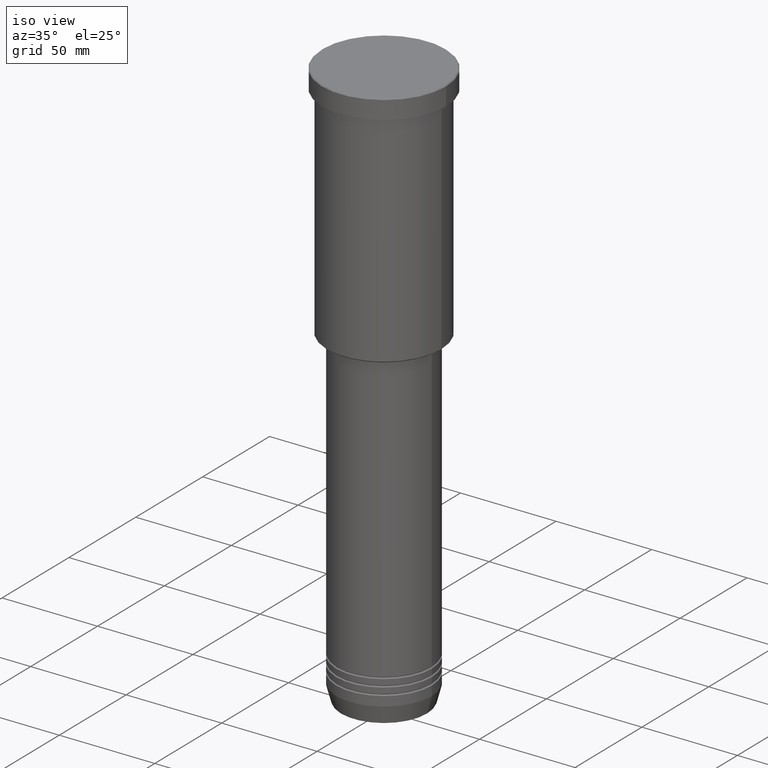
[diagram: clean part render]
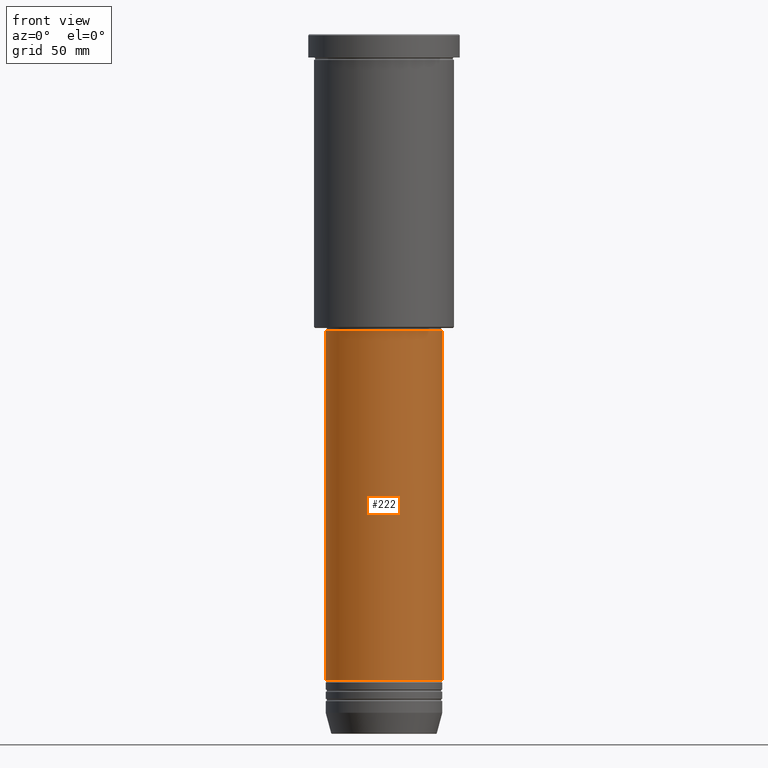
[diagram: tour spotlight — one face highlighted and labeled with its STEP entity id]
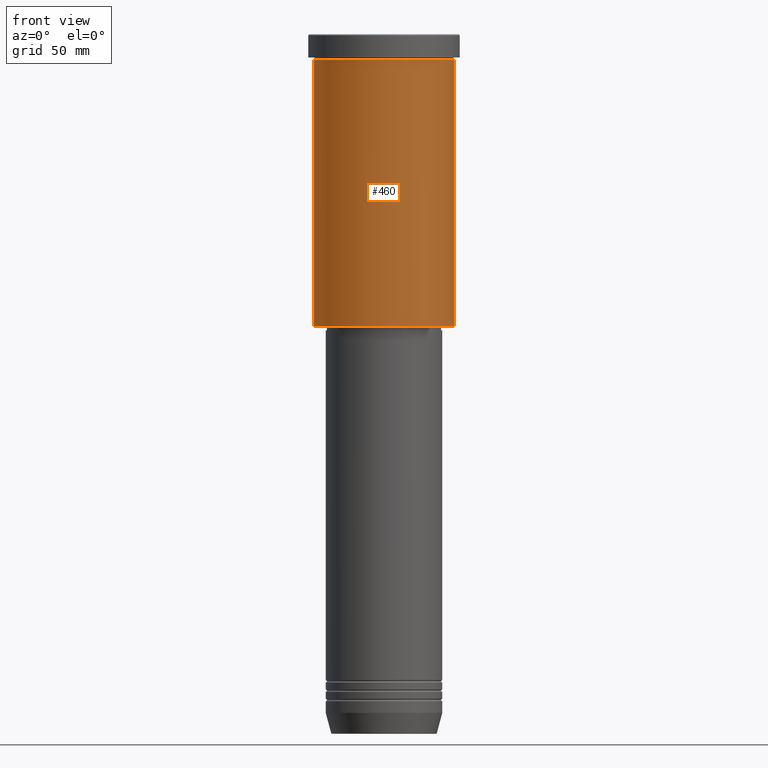
[diagram: tour spotlight — one face highlighted and labeled with its STEP entity id]
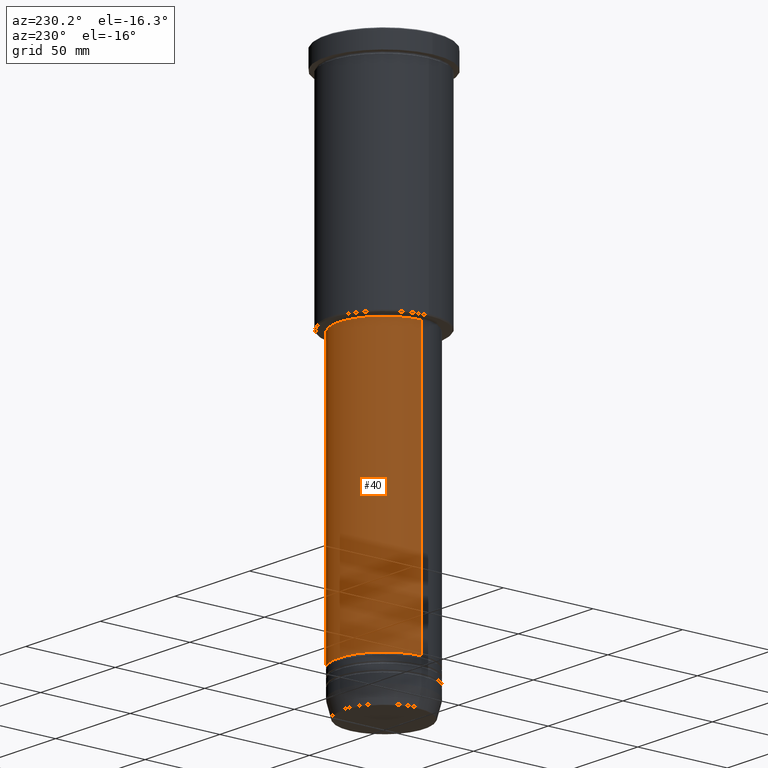
[diagram: tour spotlight — one face highlighted and labeled with its STEP entity id]
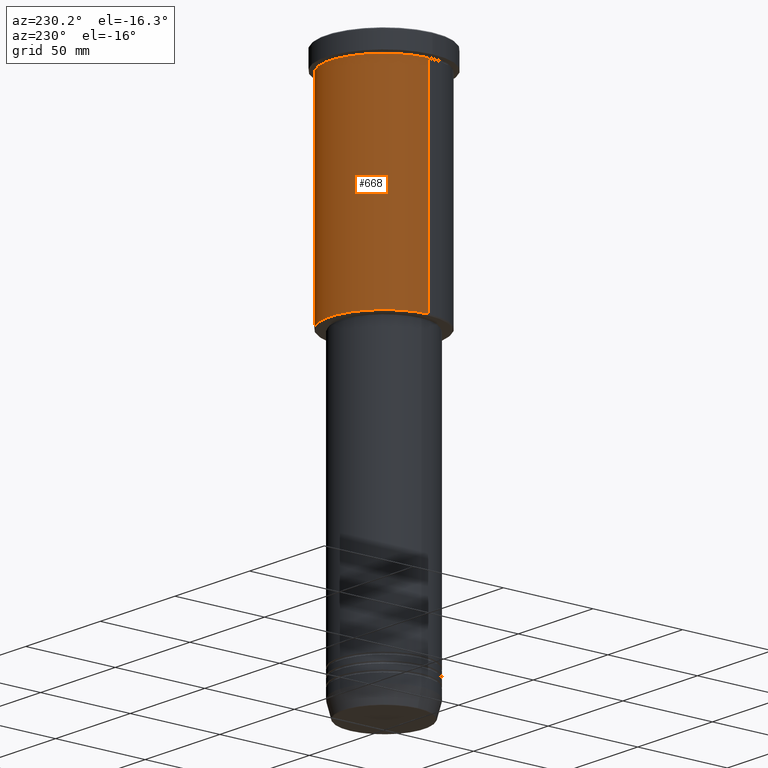
[diagram: tour spotlight — one face highlighted and labeled with its STEP entity id]
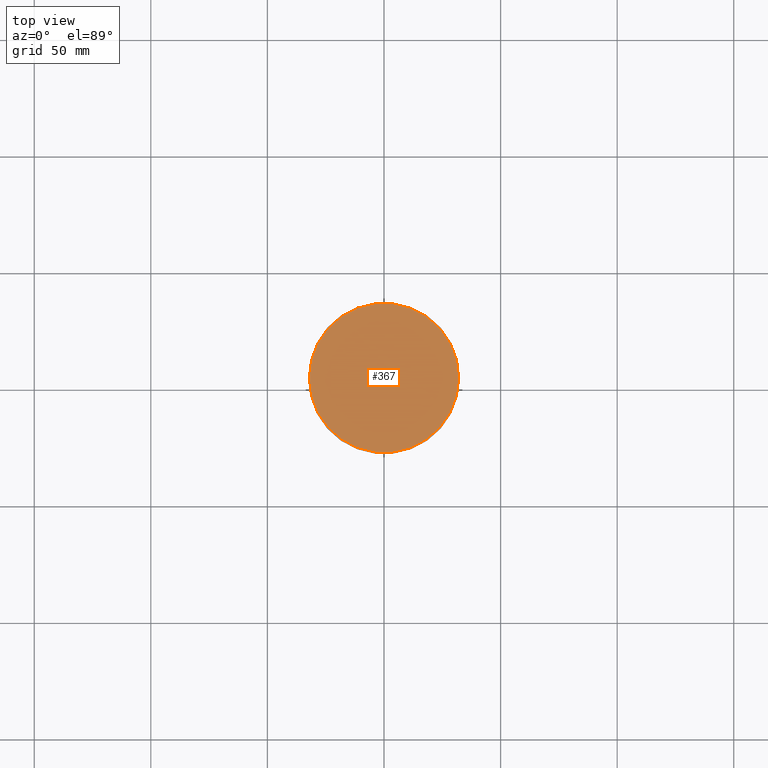
[diagram: tour spotlight — one face highlighted and labeled with its STEP entity id]
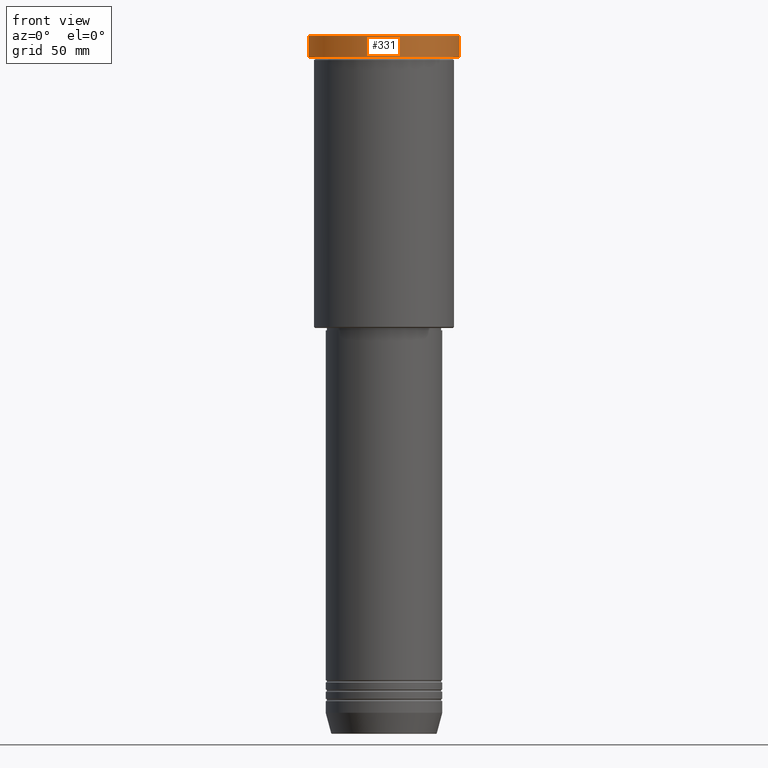
[diagram: tour spotlight — one face highlighted and labeled with its STEP entity id]
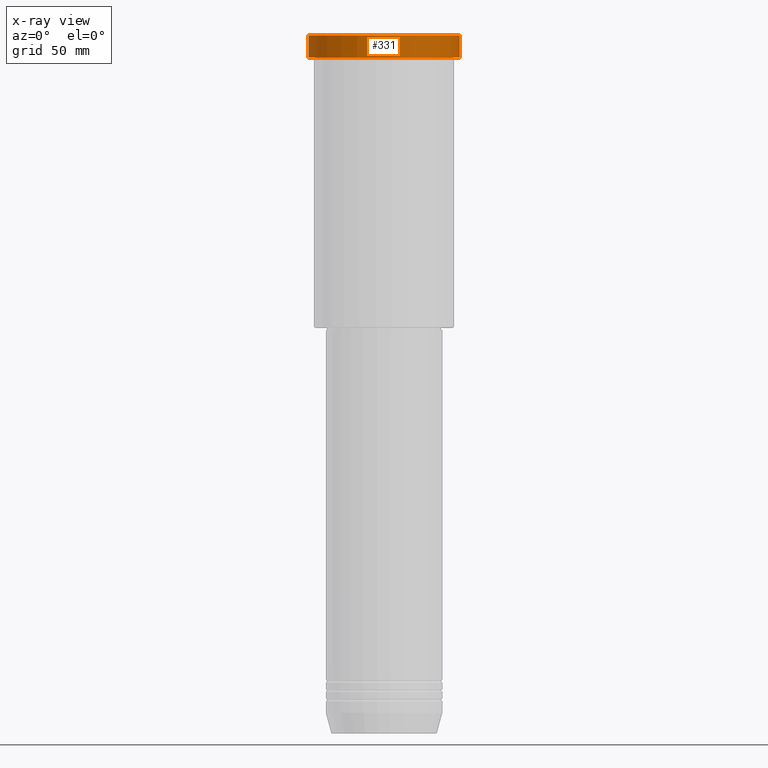
[diagram: x-ray of the same camera — body ghosted, this tour face saturated]
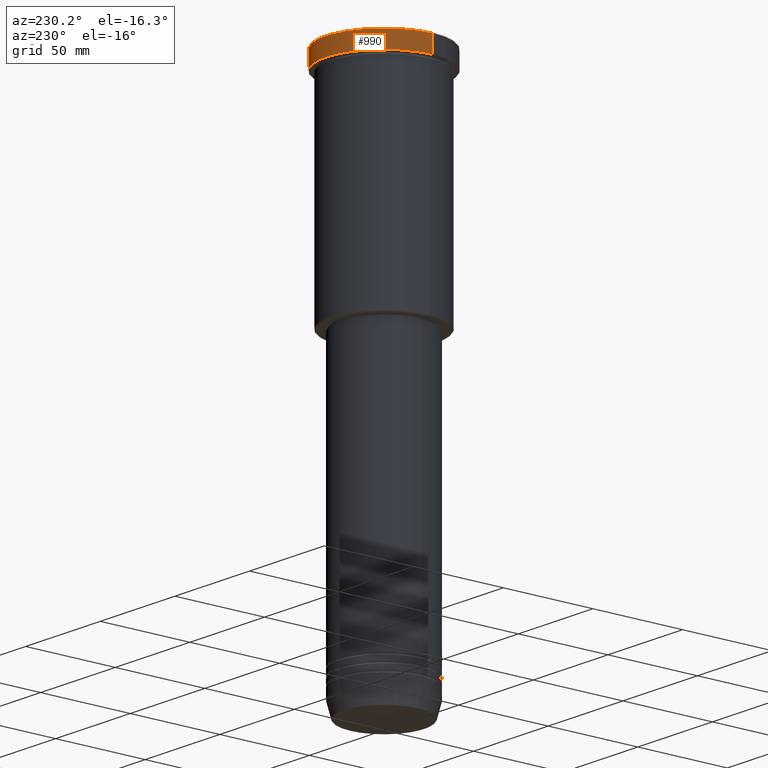
[diagram: tour spotlight — one face highlighted and labeled with its STEP entity id]
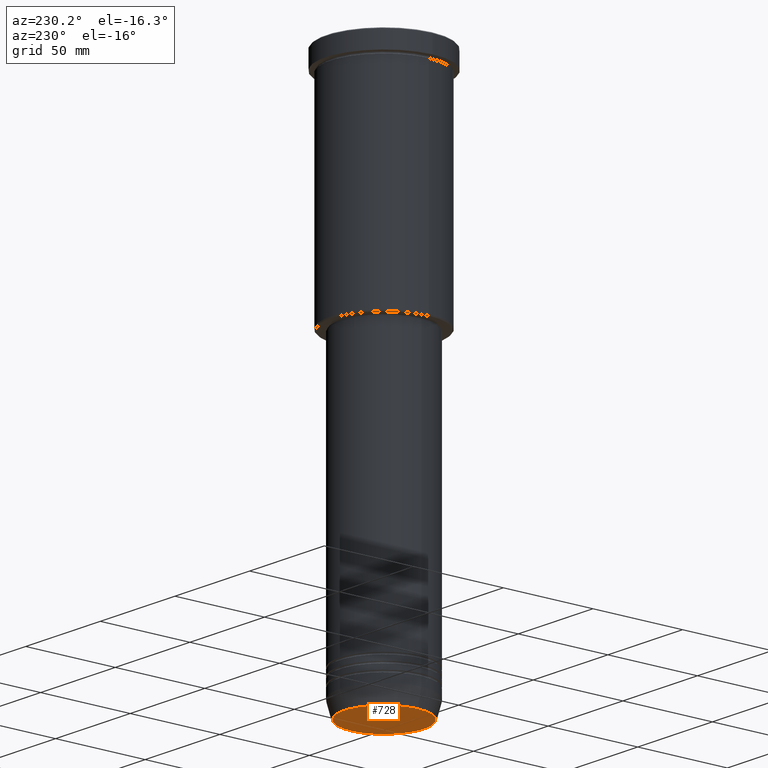
[diagram: tour spotlight — one face highlighted and labeled with its STEP entity id]
A machine part: a face-by-face anatomy tour. The part has 43 B-rep faces; the first image is the clean iso view, then the 8 largest visible faces are spotlighted one at a time (largest first), each with its STEP entity span.

Face 1 — front view, entity #222. In plain terms, the highlighted cylindrical surface (partial cylindrical patch) has radius 25 mm, axis along (-0, -0, 1).
Definition (entity closure, byte-faithful):
#13 = AXIS2_PLACEMENT_3D ( 'NONE', #919, #105, #98 ) ;
#30 = AXIS2_PLACEMENT_3D ( 'NONE', #289, #57, #394 ) ;
#57 = DIRECTION ( 'NONE',  ( -0.000000000000000000, -0.000000000000000000, 1.000000000000000000 ) ) ;
#66 = CARTESIAN_POINT ( 'NONE',  ( -25.00000000000000355, 3.061616997868383437E-15, 0.000000000000000000 ) ) ;
#98 = DIRECTION ( 'NONE',  ( 1.000000000000000000, 0.000000000000000000, 0.000000000000000000 ) ) ;
#105 = DIRECTION ( 'NONE',  ( -0.000000000000000000, -0.000000000000000000, 1.000000000000000000 ) ) ;
#157 = DIRECTION ( 'NONE',  ( 1.000000000000000000, 0.000000000000000000, 0.000000000000000000 ) ) ;
#213 = VERTEX_POINT ( 'NONE', #339 ) ;
#222 = ADVANCED_FACE ( 'NONE', ( #229 ), #945, .T. ) ;
#229 = FACE_OUTER_BOUND ( 'NONE', #692, .T. ) ;
#268 = CARTESIAN_POINT ( 'NONE',  ( 25.00000000000000711, 0.000000000000000000, -127.0000000000000000 ) ) ;
#289 = CARTESIAN_POINT ( 'NONE',  ( 0.000000000000000000, 0.000000000000000000, -276.9999999999999432 ) ) ;
#318 = CARTESIAN_POINT ( 'NONE',  ( 0.000000000000000000, 0.000000000000000000, 0.000000000000000000 ) ) ;
#339 = CARTESIAN_POINT ( 'NONE',  ( -25.00000000000001066, 3.061616997868384226E-15, -127.0000000000000000 ) ) ;
#365 = ORIENTED_EDGE ( 'NONE', *, *, #462, .T. ) ;
#374 = VERTEX_POINT ( 'NONE', #515 ) ;
#394 = DIRECTION ( 'NONE',  ( 1.000000000000000000, 0.000000000000000000, 0.000000000000000000 ) ) ;
#454 = EDGE_CURVE ( 'NONE', #670, #374, #812, .T. ) ;
#462 = EDGE_CURVE ( 'NONE', #374, #657, #755, .T. ) ;
#515 = CARTESIAN_POINT ( 'NONE',  ( 25.00000000000000000, 0.000000000000000000, -276.9999999999999432 ) ) ;
#525 = ORIENTED_EDGE ( 'NONE', *, *, #454, .T. ) ;
#530 = CIRCLE ( 'NONE', #13, 25.00000000000000711 ) ;
#565 = EDGE_CURVE ( 'NONE', #670, #213, #881, .T. ) ;
#626 = DIRECTION ( 'NONE',  ( -0.000000000000000000, -0.000000000000000000, 1.000000000000000000 ) ) ;
#657 = VERTEX_POINT ( 'NONE', #268 ) ;
#666 = CARTESIAN_POINT ( 'NONE',  ( 25.00000000000000355, 0.000000000000000000, 0.000000000000000000 ) ) ;
#670 = VERTEX_POINT ( 'NONE', #1183 ) ;
#692 = EDGE_LOOP ( 'NONE', ( #1079, #525, #365, #1026 ) ) ;
#755 = LINE ( 'NONE', #666, #1133 ) ;
#812 = CIRCLE ( 'NONE', #30, 25.00000000000000000 ) ;
#881 = LINE ( 'NONE', #66, #1032 ) ;
#919 = CARTESIAN_POINT ( 'NONE',  ( 0.000000000000000000, 0.000000000000000000, -127.0000000000000000 ) ) ;
#945 = CYLINDRICAL_SURFACE ( 'NONE', #1137, 25.00000000000000355 ) ;
#988 = DIRECTION ( 'NONE',  ( -0.000000000000000000, -0.000000000000000000, 1.000000000000000000 ) ) ;
#1026 = ORIENTED_EDGE ( 'NONE', *, *, #1167, .F. ) ;
#1032 = VECTOR ( 'NONE', #626, 1000.000000000000000 ) ;
#1049 = DIRECTION ( 'NONE',  ( -0.000000000000000000, -0.000000000000000000, 1.000000000000000000 ) ) ;
#1079 = ORIENTED_EDGE ( 'NONE', *, *, #565, .F. ) ;
#1133 = VECTOR ( 'NONE', #1049, 1000.000000000000000 ) ;
#1137 = AXIS2_PLACEMENT_3D ( 'NONE', #318, #988, #157 ) ;
#1167 = EDGE_CURVE ( 'NONE', #213, #657, #530, .T. ) ;
#1183 = CARTESIAN_POINT ( 'NONE',  ( -25.00000000000000000, 3.061616997868383437E-15, -276.9999999999999432 ) ) ;

Face 2 — front view, entity #460. In plain terms, the highlighted cylindrical surface (partial cylindrical patch) has radius 30 mm, axis along (-0, -0, 1).
Definition (entity closure, byte-faithful):
#18 = ORIENTED_EDGE ( 'NONE', *, *, #210, .T. ) ;
#49 = DIRECTION ( 'NONE',  ( 1.000000000000000000, 0.000000000000000000, 0.000000000000000000 ) ) ;
#64 = EDGE_CURVE ( 'NONE', #379, #703, #607, .T. ) ;
#85 = CIRCLE ( 'NONE', #696, 30.00000000000000000 ) ;
#128 = VECTOR ( 'NONE', #790, 1000.000000000000000 ) ;
#138 = AXIS2_PLACEMENT_3D ( 'NONE', #929, #787, #1143 ) ;
#145 = AXIS2_PLACEMENT_3D ( 'NONE', #333, #1077, #264 ) ;
#155 = ORIENTED_EDGE ( 'NONE', *, *, #64, .T. ) ;
#210 = EDGE_CURVE ( 'NONE', #703, #225, #798, .T. ) ;
#225 = VERTEX_POINT ( 'NONE', #540 ) ;
#264 = DIRECTION ( 'NONE',  ( -1.000000000000000000, 0.000000000000000000, 0.000000000000000000 ) ) ;
#283 = VERTEX_POINT ( 'NONE', #992 ) ;
#304 = ORIENTED_EDGE ( 'NONE', *, *, #1081, .F. ) ;
#333 = CARTESIAN_POINT ( 'NONE',  ( 0.000000000000000000, 0.000000000000000000, -125.5000000000000000 ) ) ;
#379 = VERTEX_POINT ( 'NONE', #491 ) ;
#460 = ADVANCED_FACE ( 'NONE', ( #488 ), #656, .T. ) ;
#488 = FACE_OUTER_BOUND ( 'NONE', #793, .T. ) ;
#491 = CARTESIAN_POINT ( 'NONE',  ( -30.00000000000000000, 3.673940397442059178E-15, -125.5000000000000000 ) ) ;
#503 = CARTESIAN_POINT ( 'NONE',  ( 0.000000000000000000, 0.000000000000000000, -10.99999999999999289 ) ) ;
#540 = CARTESIAN_POINT ( 'NONE',  ( 30.00000000000000000, 0.000000000000000000, -10.99999999999999289 ) ) ;
#590 = CARTESIAN_POINT ( 'NONE',  ( 30.00000000000000000, 0.000000000000000000, 0.000000000000000000 ) ) ;
#606 = VECTOR ( 'NONE', #1058, 1000.000000000000000 ) ;
#607 = CIRCLE ( 'NONE', #145, 30.00000000000000000 ) ;
#656 = CYLINDRICAL_SURFACE ( 'NONE', #138, 30.00000000000000000 ) ;
#696 = AXIS2_PLACEMENT_3D ( 'NONE', #503, #950, #49 ) ;
#703 = VERTEX_POINT ( 'NONE', #843 ) ;
#787 = DIRECTION ( 'NONE',  ( -0.000000000000000000, -0.000000000000000000, 1.000000000000000000 ) ) ;
#790 = DIRECTION ( 'NONE',  ( -0.000000000000000000, -0.000000000000000000, 1.000000000000000000 ) ) ;
#793 = EDGE_LOOP ( 'NONE', ( #304, #155, #18, #856 ) ) ;
#798 = LINE ( 'NONE', #590, #128 ) ;
#843 = CARTESIAN_POINT ( 'NONE',  ( 30.00000000000000000, 0.000000000000000000, -125.5000000000000000 ) ) ;
#856 = ORIENTED_EDGE ( 'NONE', *, *, #882, .F. ) ;
#882 = EDGE_CURVE ( 'NONE', #283, #225, #85, .T. ) ;
#893 = CARTESIAN_POINT ( 'NONE',  ( -30.00000000000000000, 3.673940397442059178E-15, 0.000000000000000000 ) ) ;
#929 = CARTESIAN_POINT ( 'NONE',  ( 0.000000000000000000, 0.000000000000000000, 0.000000000000000000 ) ) ;
#950 = DIRECTION ( 'NONE',  ( -0.000000000000000000, -0.000000000000000000, 1.000000000000000000 ) ) ;
#992 = CARTESIAN_POINT ( 'NONE',  ( -30.00000000000000000, 3.673940397442059178E-15, -10.99999999999999289 ) ) ;
#1058 = DIRECTION ( 'NONE',  ( -0.000000000000000000, -0.000000000000000000, 1.000000000000000000 ) ) ;
#1064 = LINE ( 'NONE', #893, #606 ) ;
#1077 = DIRECTION ( 'NONE',  ( -0.000000000000000000, -0.000000000000000000, 1.000000000000000000 ) ) ;
#1081 = EDGE_CURVE ( 'NONE', #379, #283, #1064, .T. ) ;
#1143 = DIRECTION ( 'NONE',  ( 1.000000000000000000, 0.000000000000000000, 0.000000000000000000 ) ) ;

Face 3 — auxiliary view, entity #40. In plain terms, the highlighted cylindrical surface (partial cylindrical patch) has radius 25 mm, axis along (-0, -0, 1).
Definition (entity closure, byte-faithful):
#5 = ORIENTED_EDGE ( 'NONE', *, *, #1030, .T. ) ;
#25 = ORIENTED_EDGE ( 'NONE', *, *, #462, .F. ) ;
#40 = ADVANCED_FACE ( 'NONE', ( #562 ), #45, .T. ) ;
#45 = CYLINDRICAL_SURFACE ( 'NONE', #53, 25.00000000000000355 ) ;
#53 = AXIS2_PLACEMENT_3D ( 'NONE', #327, #1157, #524 ) ;
#66 = CARTESIAN_POINT ( 'NONE',  ( -25.00000000000000355, 3.061616997868383437E-15, 0.000000000000000000 ) ) ;
#202 = CIRCLE ( 'NONE', #815, 25.00000000000000000 ) ;
#213 = VERTEX_POINT ( 'NONE', #339 ) ;
#268 = CARTESIAN_POINT ( 'NONE',  ( 25.00000000000000711, 0.000000000000000000, -127.0000000000000000 ) ) ;
#310 = EDGE_CURVE ( 'NONE', #657, #213, #777, .T. ) ;
#327 = CARTESIAN_POINT ( 'NONE',  ( 0.000000000000000000, 0.000000000000000000, 0.000000000000000000 ) ) ;
#339 = CARTESIAN_POINT ( 'NONE',  ( -25.00000000000001066, 3.061616997868384226E-15, -127.0000000000000000 ) ) ;
#353 = CARTESIAN_POINT ( 'NONE',  ( 0.000000000000000000, 0.000000000000000000, -276.9999999999999432 ) ) ;
#374 = VERTEX_POINT ( 'NONE', #515 ) ;
#456 = AXIS2_PLACEMENT_3D ( 'NONE', #983, #987, #470 ) ;
#462 = EDGE_CURVE ( 'NONE', #374, #657, #755, .T. ) ;
#470 = DIRECTION ( 'NONE',  ( 1.000000000000000000, 0.000000000000000000, 0.000000000000000000 ) ) ;
#515 = CARTESIAN_POINT ( 'NONE',  ( 25.00000000000000000, 0.000000000000000000, -276.9999999999999432 ) ) ;
#524 = DIRECTION ( 'NONE',  ( 1.000000000000000000, 0.000000000000000000, 0.000000000000000000 ) ) ;
#562 = FACE_OUTER_BOUND ( 'NONE', #685, .T. ) ;
#565 = EDGE_CURVE ( 'NONE', #670, #213, #881, .T. ) ;
#626 = DIRECTION ( 'NONE',  ( -0.000000000000000000, -0.000000000000000000, 1.000000000000000000 ) ) ;
#657 = VERTEX_POINT ( 'NONE', #268 ) ;
#666 = CARTESIAN_POINT ( 'NONE',  ( 25.00000000000000355, 0.000000000000000000, 0.000000000000000000 ) ) ;
#670 = VERTEX_POINT ( 'NONE', #1183 ) ;
#685 = EDGE_LOOP ( 'NONE', ( #5, #1114, #1166, #25 ) ) ;
#712 = DIRECTION ( 'NONE',  ( -0.000000000000000000, -0.000000000000000000, 1.000000000000000000 ) ) ;
#755 = LINE ( 'NONE', #666, #1133 ) ;
#777 = CIRCLE ( 'NONE', #456, 25.00000000000000711 ) ;
#797 = DIRECTION ( 'NONE',  ( 1.000000000000000000, 0.000000000000000000, 0.000000000000000000 ) ) ;
#815 = AXIS2_PLACEMENT_3D ( 'NONE', #353, #712, #797 ) ;
#881 = LINE ( 'NONE', #66, #1032 ) ;
#983 = CARTESIAN_POINT ( 'NONE',  ( 0.000000000000000000, 0.000000000000000000, -127.0000000000000000 ) ) ;
#987 = DIRECTION ( 'NONE',  ( -0.000000000000000000, -0.000000000000000000, 1.000000000000000000 ) ) ;
#1030 = EDGE_CURVE ( 'NONE', #374, #670, #202, .T. ) ;
#1032 = VECTOR ( 'NONE', #626, 1000.000000000000000 ) ;
#1049 = DIRECTION ( 'NONE',  ( -0.000000000000000000, -0.000000000000000000, 1.000000000000000000 ) ) ;
#1114 = ORIENTED_EDGE ( 'NONE', *, *, #565, .T. ) ;
#1133 = VECTOR ( 'NONE', #1049, 1000.000000000000000 ) ;
#1157 = DIRECTION ( 'NONE',  ( -0.000000000000000000, -0.000000000000000000, 1.000000000000000000 ) ) ;
#1166 = ORIENTED_EDGE ( 'NONE', *, *, #310, .F. ) ;
#1183 = CARTESIAN_POINT ( 'NONE',  ( -25.00000000000000000, 3.061616997868383437E-15, -276.9999999999999432 ) ) ;

Face 4 — auxiliary view, entity #668. In plain terms, the highlighted cylindrical surface (partial cylindrical patch) has radius 30 mm, axis along (-0, -0, 1).
Definition (entity closure, byte-faithful):
#58 = ORIENTED_EDGE ( 'NONE', *, *, #1022, .F. ) ;
#60 = CYLINDRICAL_SURFACE ( 'NONE', #994, 30.00000000000000000 ) ;
#128 = VECTOR ( 'NONE', #790, 1000.000000000000000 ) ;
#177 = DIRECTION ( 'NONE',  ( -1.000000000000000000, 0.000000000000000000, 0.000000000000000000 ) ) ;
#179 = ORIENTED_EDGE ( 'NONE', *, *, #1081, .T. ) ;
#201 = CIRCLE ( 'NONE', #832, 30.00000000000000000 ) ;
#210 = EDGE_CURVE ( 'NONE', #703, #225, #798, .T. ) ;
#225 = VERTEX_POINT ( 'NONE', #540 ) ;
#238 = CIRCLE ( 'NONE', #1174, 30.00000000000000000 ) ;
#283 = VERTEX_POINT ( 'NONE', #992 ) ;
#330 = CARTESIAN_POINT ( 'NONE',  ( 0.000000000000000000, 0.000000000000000000, -10.99999999999999289 ) ) ;
#348 = DIRECTION ( 'NONE',  ( -0.000000000000000000, -0.000000000000000000, 1.000000000000000000 ) ) ;
#379 = VERTEX_POINT ( 'NONE', #491 ) ;
#491 = CARTESIAN_POINT ( 'NONE',  ( -30.00000000000000000, 3.673940397442059178E-15, -125.5000000000000000 ) ) ;
#540 = CARTESIAN_POINT ( 'NONE',  ( 30.00000000000000000, 0.000000000000000000, -10.99999999999999289 ) ) ;
#566 = CARTESIAN_POINT ( 'NONE',  ( 0.000000000000000000, 0.000000000000000000, -125.5000000000000000 ) ) ;
#590 = CARTESIAN_POINT ( 'NONE',  ( 30.00000000000000000, 0.000000000000000000, 0.000000000000000000 ) ) ;
#606 = VECTOR ( 'NONE', #1058, 1000.000000000000000 ) ;
#612 = CARTESIAN_POINT ( 'NONE',  ( 0.000000000000000000, 0.000000000000000000, 0.000000000000000000 ) ) ;
#644 = EDGE_LOOP ( 'NONE', ( #1130, #179, #58, #730 ) ) ;
#668 = ADVANCED_FACE ( 'NONE', ( #964 ), #60, .T. ) ;
#703 = VERTEX_POINT ( 'NONE', #843 ) ;
#717 = DIRECTION ( 'NONE',  ( -0.000000000000000000, -0.000000000000000000, 1.000000000000000000 ) ) ;
#730 = ORIENTED_EDGE ( 'NONE', *, *, #210, .F. ) ;
#769 = EDGE_CURVE ( 'NONE', #703, #379, #201, .T. ) ;
#790 = DIRECTION ( 'NONE',  ( -0.000000000000000000, -0.000000000000000000, 1.000000000000000000 ) ) ;
#798 = LINE ( 'NONE', #590, #128 ) ;
#820 = DIRECTION ( 'NONE',  ( 1.000000000000000000, 0.000000000000000000, 0.000000000000000000 ) ) ;
#832 = AXIS2_PLACEMENT_3D ( 'NONE', #566, #989, #177 ) ;
#843 = CARTESIAN_POINT ( 'NONE',  ( 30.00000000000000000, 0.000000000000000000, -125.5000000000000000 ) ) ;
#893 = CARTESIAN_POINT ( 'NONE',  ( -30.00000000000000000, 3.673940397442059178E-15, 0.000000000000000000 ) ) ;
#964 = FACE_OUTER_BOUND ( 'NONE', #644, .T. ) ;
#989 = DIRECTION ( 'NONE',  ( -0.000000000000000000, -0.000000000000000000, 1.000000000000000000 ) ) ;
#992 = CARTESIAN_POINT ( 'NONE',  ( -30.00000000000000000, 3.673940397442059178E-15, -10.99999999999999289 ) ) ;
#994 = AXIS2_PLACEMENT_3D ( 'NONE', #612, #348, #820 ) ;
#1022 = EDGE_CURVE ( 'NONE', #225, #283, #238, .T. ) ;
#1046 = DIRECTION ( 'NONE',  ( 1.000000000000000000, 0.000000000000000000, 0.000000000000000000 ) ) ;
#1058 = DIRECTION ( 'NONE',  ( -0.000000000000000000, -0.000000000000000000, 1.000000000000000000 ) ) ;
#1064 = LINE ( 'NONE', #893, #606 ) ;
#1081 = EDGE_CURVE ( 'NONE', #379, #283, #1064, .T. ) ;
#1130 = ORIENTED_EDGE ( 'NONE', *, *, #769, .T. ) ;
#1174 = AXIS2_PLACEMENT_3D ( 'NONE', #330, #717, #1046 ) ;

Face 5 — top view, entity #367. In plain terms, the highlighted planar face has unit normal (0, -0, 1).
Definition (entity closure, byte-faithful):
#27 = CARTESIAN_POINT ( 'NONE',  ( 0.000000000000000000, 0.000000000000000000, 0.000000000000000000 ) ) ;
#31 = AXIS2_PLACEMENT_3D ( 'NONE', #27, #197, #635 ) ;
#62 = DIRECTION ( 'NONE',  ( -0.000000000000000000, -0.000000000000000000, 1.000000000000000000 ) ) ;
#174 = FACE_OUTER_BOUND ( 'NONE', #1025, .T. ) ;
#183 = ORIENTED_EDGE ( 'NONE', *, *, #748, .T. ) ;
#197 = DIRECTION ( 'NONE',  ( -0.000000000000000000, -0.000000000000000000, 1.000000000000000000 ) ) ;
#199 = DIRECTION ( 'NONE',  ( 0.000000000000000000, -0.000000000000000000, 1.000000000000000000 ) ) ;
#234 = CIRCLE ( 'NONE', #31, 32.00000000000002842 ) ;
#334 = VERTEX_POINT ( 'NONE', #647 ) ;
#367 = ADVANCED_FACE ( 'NONE', ( #174 ), #542, .T. ) ;
#424 = DIRECTION ( 'NONE',  ( 1.000000000000000000, 0.000000000000000000, 0.000000000000000000 ) ) ;
#542 = PLANE ( 'NONE',  #884 ) ;
#570 = AXIS2_PLACEMENT_3D ( 'NONE', #789, #62, #1075 ) ;
#635 = DIRECTION ( 'NONE',  ( 1.000000000000000000, 0.000000000000000000, 0.000000000000000000 ) ) ;
#637 = CARTESIAN_POINT ( 'NONE',  ( 0.000000000000000000, 0.000000000000000000, 0.000000000000000000 ) ) ;
#647 = CARTESIAN_POINT ( 'NONE',  ( 32.00000000000002842, 3.949485927250216417E-15, 0.000000000000000000 ) ) ;
#748 = EDGE_CURVE ( 'NONE', #334, #971, #234, .T. ) ;
#789 = CARTESIAN_POINT ( 'NONE',  ( 0.000000000000000000, 0.000000000000000000, 0.000000000000000000 ) ) ;
#853 = ORIENTED_EDGE ( 'NONE', *, *, #1039, .T. ) ;
#868 = CIRCLE ( 'NONE', #570, 32.00000000000002842 ) ;
#884 = AXIS2_PLACEMENT_3D ( 'NONE', #637, #199, #424 ) ;
#971 = VERTEX_POINT ( 'NONE', #1028 ) ;
#1025 = EDGE_LOOP ( 'NONE', ( #853, #183 ) ) ;
#1028 = CARTESIAN_POINT ( 'NONE',  ( -32.00000000000002842, 0.000000000000000000, 0.000000000000000000 ) ) ;
#1039 = EDGE_CURVE ( 'NONE', #971, #334, #868, .T. ) ;
#1075 = DIRECTION ( 'NONE',  ( 1.000000000000000000, 0.000000000000000000, 0.000000000000000000 ) ) ;

Face 6 — front view, entity #331. An x-ray twin of the same camera follows (body ghosted, this face saturated) — the face is partly hidden behind the body. In plain terms, the highlighted cylindrical surface (partial cylindrical patch) has radius 32.5 mm, axis along (-0, -0, 1).
Definition (entity closure, byte-faithful):
#52 = VECTOR ( 'NONE', #876, 1000.000000000000000 ) ;
#56 = DIRECTION ( 'NONE',  ( 0.000000000000000000, 0.000000000000000000, -1.000000000000000000 ) ) ;
#77 = EDGE_LOOP ( 'NONE', ( #697, #883, #220, #1125 ) ) ;
#93 = DIRECTION ( 'NONE',  ( 1.000000000000000000, 0.000000000000000000, 0.000000000000000000 ) ) ;
#164 = VERTEX_POINT ( 'NONE', #501 ) ;
#198 = EDGE_CURVE ( 'NONE', #412, #478, #549, .T. ) ;
#214 = AXIS2_PLACEMENT_3D ( 'NONE', #899, #447, #93 ) ;
#220 = ORIENTED_EDGE ( 'NONE', *, *, #1150, .T. ) ;
#243 = DIRECTION ( 'NONE',  ( 1.000000000000000000, 0.000000000000000000, 0.000000000000000000 ) ) ;
#252 = EDGE_CURVE ( 'NONE', #164, #320, #869, .T. ) ;
#280 = CYLINDRICAL_SURFACE ( 'NONE', #214, 32.50000000000000000 ) ;
#312 = VECTOR ( 'NONE', #1085, 1000.000000000000000 ) ;
#320 = VERTEX_POINT ( 'NONE', #1006 ) ;
#331 = ADVANCED_FACE ( 'NONE', ( #1091 ), #280, .T. ) ;
#356 = EDGE_CURVE ( 'NONE', #164, #478, #723, .T. ) ;
#364 = AXIS2_PLACEMENT_3D ( 'NONE', #1101, #387, #807 ) ;
#387 = DIRECTION ( 'NONE',  ( -0.000000000000000000, -0.000000000000000000, 1.000000000000000000 ) ) ;
#412 = VERTEX_POINT ( 'NONE', #1024 ) ;
#447 = DIRECTION ( 'NONE',  ( -0.000000000000000000, -0.000000000000000000, 1.000000000000000000 ) ) ;
#455 = LINE ( 'NONE', #519, #52 ) ;
#477 = CARTESIAN_POINT ( 'NONE',  ( -32.50000000000000000, 3.980102097228898626E-15, -0.5000000000000004441 ) ) ;
#478 = VERTEX_POINT ( 'NONE', #477 ) ;
#501 = CARTESIAN_POINT ( 'NONE',  ( -32.50000000000000000, 3.980102097228898626E-15, -9.999999999999992895 ) ) ;
#519 = CARTESIAN_POINT ( 'NONE',  ( 32.50000000000000000, 0.000000000000000000, 0.000000000000000000 ) ) ;
#549 = CIRCLE ( 'NONE', #1153, 32.50000000000000000 ) ;
#697 = ORIENTED_EDGE ( 'NONE', *, *, #356, .F. ) ;
#723 = LINE ( 'NONE', #729, #312 ) ;
#729 = CARTESIAN_POINT ( 'NONE',  ( -32.50000000000000000, 3.980102097228898626E-15, 0.000000000000000000 ) ) ;
#807 = DIRECTION ( 'NONE',  ( 1.000000000000000000, 0.000000000000000000, 0.000000000000000000 ) ) ;
#869 = CIRCLE ( 'NONE', #364, 32.50000000000000000 ) ;
#876 = DIRECTION ( 'NONE',  ( -0.000000000000000000, -0.000000000000000000, 1.000000000000000000 ) ) ;
#883 = ORIENTED_EDGE ( 'NONE', *, *, #252, .T. ) ;
#899 = CARTESIAN_POINT ( 'NONE',  ( 0.000000000000000000, 0.000000000000000000, 0.000000000000000000 ) ) ;
#1006 = CARTESIAN_POINT ( 'NONE',  ( 32.50000000000000000, 0.000000000000000000, -9.999999999999992895 ) ) ;
#1024 = CARTESIAN_POINT ( 'NONE',  ( 32.50000000000000000, 0.000000000000000000, -0.5000000000000004441 ) ) ;
#1042 = CARTESIAN_POINT ( 'NONE',  ( 0.000000000000000000, 0.000000000000000000, -0.5000000000000004441 ) ) ;
#1085 = DIRECTION ( 'NONE',  ( -0.000000000000000000, -0.000000000000000000, 1.000000000000000000 ) ) ;
#1091 = FACE_OUTER_BOUND ( 'NONE', #77, .T. ) ;
#1101 = CARTESIAN_POINT ( 'NONE',  ( 0.000000000000000000, 0.000000000000000000, -9.999999999999992895 ) ) ;
#1125 = ORIENTED_EDGE ( 'NONE', *, *, #198, .T. ) ;
#1150 = EDGE_CURVE ( 'NONE', #320, #412, #455, .T. ) ;
#1153 = AXIS2_PLACEMENT_3D ( 'NONE', #1042, #56, #243 ) ;

Face 7 — auxiliary view, entity #990. In plain terms, the highlighted cylindrical surface (partial cylindrical patch) has radius 32.5 mm, axis along (-0, -0, 1).
Definition (entity closure, byte-faithful):
#2 = EDGE_LOOP ( 'NONE', ( #653, #850, #959, #1152 ) ) ;
#52 = VECTOR ( 'NONE', #876, 1000.000000000000000 ) ;
#115 = DIRECTION ( 'NONE',  ( 1.000000000000000000, 0.000000000000000000, 0.000000000000000000 ) ) ;
#161 = AXIS2_PLACEMENT_3D ( 'NONE', #1008, #1115, #115 ) ;
#164 = VERTEX_POINT ( 'NONE', #501 ) ;
#180 = CIRCLE ( 'NONE', #779, 32.50000000000000000 ) ;
#218 = DIRECTION ( 'NONE',  ( 0.000000000000000000, 0.000000000000000000, -1.000000000000000000 ) ) ;
#312 = VECTOR ( 'NONE', #1085, 1000.000000000000000 ) ;
#320 = VERTEX_POINT ( 'NONE', #1006 ) ;
#356 = EDGE_CURVE ( 'NONE', #164, #478, #723, .T. ) ;
#401 = AXIS2_PLACEMENT_3D ( 'NONE', #489, #1122, #847 ) ;
#412 = VERTEX_POINT ( 'NONE', #1024 ) ;
#422 = DIRECTION ( 'NONE',  ( 1.000000000000000000, 0.000000000000000000, 0.000000000000000000 ) ) ;
#455 = LINE ( 'NONE', #519, #52 ) ;
#477 = CARTESIAN_POINT ( 'NONE',  ( -32.50000000000000000, 3.980102097228898626E-15, -0.5000000000000004441 ) ) ;
#478 = VERTEX_POINT ( 'NONE', #477 ) ;
#489 = CARTESIAN_POINT ( 'NONE',  ( 0.000000000000000000, 0.000000000000000000, 0.000000000000000000 ) ) ;
#501 = CARTESIAN_POINT ( 'NONE',  ( -32.50000000000000000, 3.980102097228898626E-15, -9.999999999999992895 ) ) ;
#519 = CARTESIAN_POINT ( 'NONE',  ( 32.50000000000000000, 0.000000000000000000, 0.000000000000000000 ) ) ;
#578 = FACE_OUTER_BOUND ( 'NONE', #2, .T. ) ;
#653 = ORIENTED_EDGE ( 'NONE', *, *, #743, .T. ) ;
#683 = CARTESIAN_POINT ( 'NONE',  ( 0.000000000000000000, 0.000000000000000000, -0.5000000000000004441 ) ) ;
#718 = CIRCLE ( 'NONE', #161, 32.50000000000000000 ) ;
#723 = LINE ( 'NONE', #729, #312 ) ;
#729 = CARTESIAN_POINT ( 'NONE',  ( -32.50000000000000000, 3.980102097228898626E-15, 0.000000000000000000 ) ) ;
#743 = EDGE_CURVE ( 'NONE', #320, #164, #718, .T. ) ;
#779 = AXIS2_PLACEMENT_3D ( 'NONE', #683, #218, #422 ) ;
#847 = DIRECTION ( 'NONE',  ( 1.000000000000000000, 0.000000000000000000, 0.000000000000000000 ) ) ;
#850 = ORIENTED_EDGE ( 'NONE', *, *, #356, .T. ) ;
#876 = DIRECTION ( 'NONE',  ( -0.000000000000000000, -0.000000000000000000, 1.000000000000000000 ) ) ;
#916 = EDGE_CURVE ( 'NONE', #478, #412, #180, .T. ) ;
#931 = CYLINDRICAL_SURFACE ( 'NONE', #401, 32.50000000000000000 ) ;
#959 = ORIENTED_EDGE ( 'NONE', *, *, #916, .T. ) ;
#990 = ADVANCED_FACE ( 'NONE', ( #578 ), #931, .T. ) ;
#1006 = CARTESIAN_POINT ( 'NONE',  ( 32.50000000000000000, 0.000000000000000000, -9.999999999999992895 ) ) ;
#1008 = CARTESIAN_POINT ( 'NONE',  ( 0.000000000000000000, 0.000000000000000000, -9.999999999999992895 ) ) ;
#1024 = CARTESIAN_POINT ( 'NONE',  ( 32.50000000000000000, 0.000000000000000000, -0.5000000000000004441 ) ) ;
#1085 = DIRECTION ( 'NONE',  ( -0.000000000000000000, -0.000000000000000000, 1.000000000000000000 ) ) ;
#1115 = DIRECTION ( 'NONE',  ( -0.000000000000000000, -0.000000000000000000, 1.000000000000000000 ) ) ;
#1122 = DIRECTION ( 'NONE',  ( -0.000000000000000000, -0.000000000000000000, 1.000000000000000000 ) ) ;
#1150 = EDGE_CURVE ( 'NONE', #320, #412, #455, .T. ) ;
#1152 = ORIENTED_EDGE ( 'NONE', *, *, #1150, .F. ) ;

Face 8 — auxiliary view, entity #728. In plain terms, the highlighted planar face has unit normal (0, -0, 1).
Definition (entity closure, byte-faithful):
#21 = FACE_OUTER_BOUND ( 'NONE', #686, .T. ) ;
#24 = CARTESIAN_POINT ( 'NONE',  ( 0.000000000000000000, 0.000000000000000000, -300.0000000000000000 ) ) ;
#86 = AXIS2_PLACEMENT_3D ( 'NONE', #673, #667, #514 ) ;
#192 = CARTESIAN_POINT ( 'NONE',  ( 0.000000000000000000, 0.000000000000000000, -300.0000000000000000 ) ) ;
#226 = VERTEX_POINT ( 'NONE', #1178 ) ;
#368 = ORIENTED_EDGE ( 'NONE', *, *, #451, .T. ) ;
#400 = DIRECTION ( 'NONE',  ( 1.000000000000000000, 0.000000000000000000, 0.000000000000000000 ) ) ;
#451 = EDGE_CURVE ( 'NONE', #917, #226, #568, .T. ) ;
#514 = DIRECTION ( 'NONE',  ( 1.000000000000000000, 0.000000000000000000, 0.000000000000000000 ) ) ;
#546 = AXIS2_PLACEMENT_3D ( 'NONE', #192, #733, #655 ) ;
#568 = CIRCLE ( 'NONE', #716, 22.20479377413040467 ) ;
#599 = CARTESIAN_POINT ( 'NONE',  ( -22.20479377413040467, 2.748875911406054788E-15, -300.0000000000000000 ) ) ;
#655 = DIRECTION ( 'NONE',  ( 1.000000000000000000, 0.000000000000000000, 0.000000000000000000 ) ) ;
#667 = DIRECTION ( 'NONE',  ( 0.000000000000000000, 0.000000000000000000, -1.000000000000000000 ) ) ;
#673 = CARTESIAN_POINT ( 'NONE',  ( 0.000000000000000000, 0.000000000000000000, -300.0000000000000000 ) ) ;
#686 = EDGE_LOOP ( 'NONE', ( #1029, #368 ) ) ;
#716 = AXIS2_PLACEMENT_3D ( 'NONE', #24, #873, #400 ) ;
#728 = ADVANCED_FACE ( 'NONE', ( #21 ), #758, .F. ) ;
#733 = DIRECTION ( 'NONE',  ( 0.000000000000000000, -0.000000000000000000, 1.000000000000000000 ) ) ;
#758 = PLANE ( 'NONE',  #546 ) ;
#873 = DIRECTION ( 'NONE',  ( 0.000000000000000000, 0.000000000000000000, -1.000000000000000000 ) ) ;
#917 = VERTEX_POINT ( 'NONE', #599 ) ;
#967 = EDGE_CURVE ( 'NONE', #226, #917, #1113, .T. ) ;
#1029 = ORIENTED_EDGE ( 'NONE', *, *, #967, .T. ) ;
#1113 = CIRCLE ( 'NONE', #86, 22.20479377413040467 ) ;
#1178 = CARTESIAN_POINT ( 'NONE',  ( 22.20479377413040467, 0.000000000000000000, -300.0000000000000000 ) ) ;